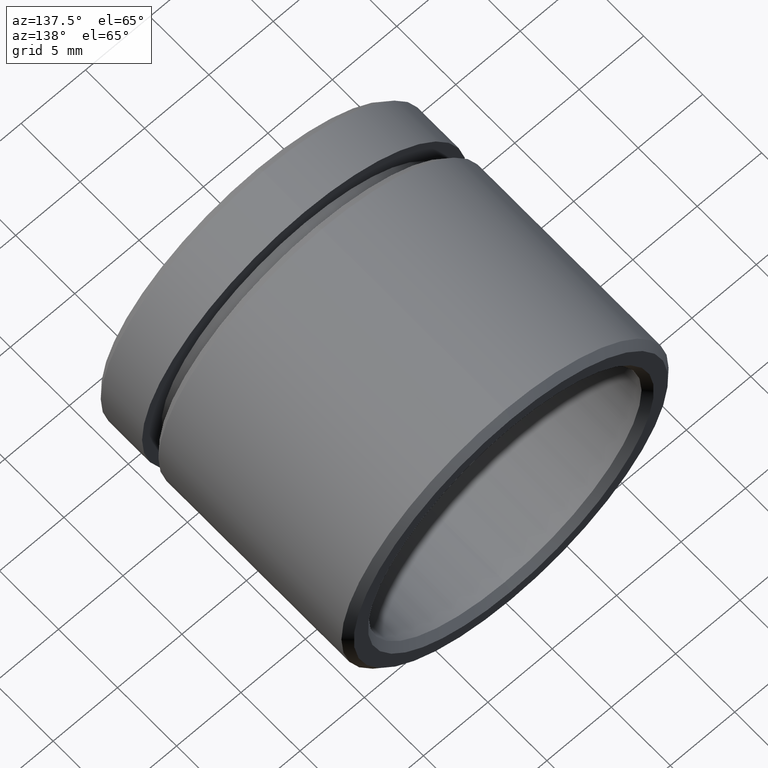
[diagram: clean part render]
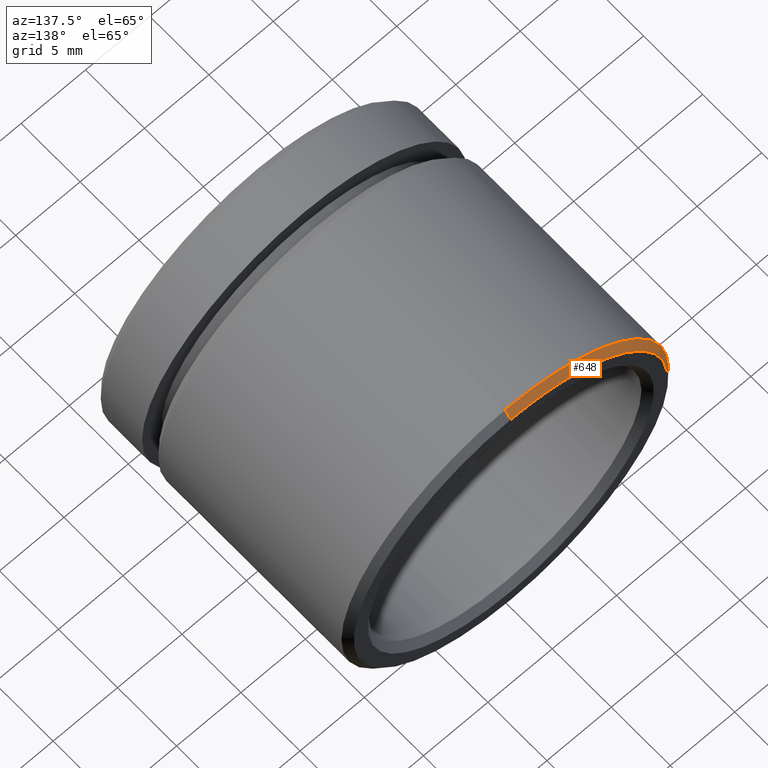
[diagram: same view with one face highlighted and labeled with its STEP entity id]
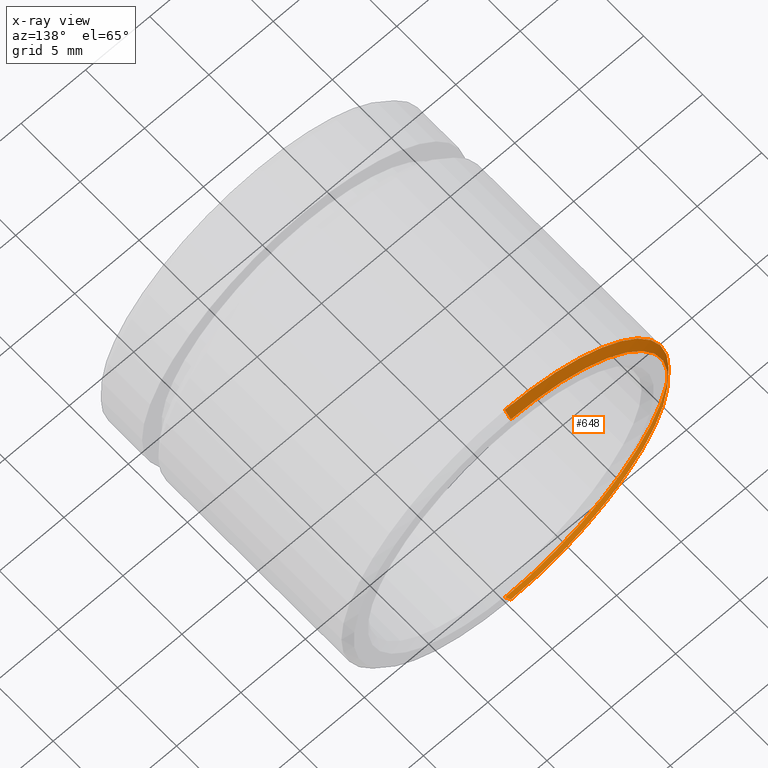
[diagram: x-ray of the same camera — body ghosted, the highlighted face saturated]
A machine part, auxiliary view. The second image highlights one B-rep face of the part: STEP entity #648.
The next image is the same camera in x-ray: the body ghosted, the highlighted face saturated — about 0% of this face is hidden behind the body in this view.
In plain terms, the highlighted conical surface has half-angle 45 deg.
Its self-contained STEP definition (entity closure, byte-faithful):
#49 = VERTEX_POINT ( 'NONE', #735 ) ;
#81 = CARTESIAN_POINT ( 'NONE',  ( 1.555301434917138400E-015, 20.99999999999998200, 12.69999999999999900 ) ) ;
#100 = VERTEX_POINT ( 'NONE', #81 ) ;
#173 = DIRECTION ( 'NONE',  ( 8.659560562354979700E-017, -0.7071067811865439100, 0.7071067811865512400 ) ) ;
#184 = AXIS2_PLACEMENT_3D ( 'NONE', #330, #343, #815 ) ;
#212 = DIRECTION ( 'NONE',  ( -0.0000000000000000000, -1.000000000000000000, -0.0000000000000000000 ) ) ;
#256 = EDGE_CURVE ( 'NONE', #404, #529, #569, .T. ) ;
#280 = CIRCLE ( 'NONE', #413, 12.69999999999999900 ) ;
#317 = ORIENTED_EDGE ( 'NONE', *, *, #846, .T. ) ;
#325 = DIRECTION ( 'NONE',  ( 0.0000000000000000000, -0.7071067811865439100, -0.7071067811865512400 ) ) ;
#330 = CARTESIAN_POINT ( 'NONE',  ( 0.0000000000000000000, 20.99999999999998200, 0.0000000000000000000 ) ) ;
#343 = DIRECTION ( 'NONE',  ( -0.0000000000000000000, -1.000000000000000000, -0.0000000000000000000 ) ) ;
#346 = LINE ( 'NONE', #433, #503 ) ;
#350 = CARTESIAN_POINT ( 'NONE',  ( 0.0000000000000000000, 20.99999999999998200, -12.69999999999999900 ) ) ;
#358 = CONICAL_SURFACE ( 'NONE', #184, 12.69999999999999900, 0.7853981633974536100 ) ;
#390 = CARTESIAN_POINT ( 'NONE',  ( 0.0000000000000000000, 21.50000000000000000, -12.19999999999998000 ) ) ;
#394 = ORIENTED_EDGE ( 'NONE', *, *, #832, .F. ) ;
#404 = VERTEX_POINT ( 'NONE', #390 ) ;
#407 = DIRECTION ( 'NONE',  ( 0.0000000000000000000, 1.000000000000000000, 0.0000000000000000000 ) ) ;
#413 = AXIS2_PLACEMENT_3D ( 'NONE', #698, #212, #862 ) ;
#424 = CARTESIAN_POINT ( 'NONE',  ( 1.524685264938453700E-015, 21.50000000000000000, 12.19999999999998000 ) ) ;
#429 = ORIENTED_EDGE ( 'NONE', *, *, #819, .F. ) ;
#433 = CARTESIAN_POINT ( 'NONE',  ( 1.555301434917138400E-015, 20.99999999999998200, 12.69999999999999900 ) ) ;
#457 = EDGE_LOOP ( 'NONE', ( #429, #500, #317, #394 ) ) ;
#465 = CARTESIAN_POINT ( 'NONE',  ( 0.0000000000000000000, 21.50000000000000000, 0.0000000000000000000 ) ) ;
#500 = ORIENTED_EDGE ( 'NONE', *, *, #256, .F. ) ;
#503 = VECTOR ( 'NONE', #173, 999.9999999999998900 ) ;
#529 = VERTEX_POINT ( 'NONE', #424 ) ;
#547 = FACE_OUTER_BOUND ( 'NONE', #457, .T. ) ;
#569 = CIRCLE ( 'NONE', #871, 12.19999999999998000 ) ;
#648 = ADVANCED_FACE ( 'NONE', ( #547 ), #358, .T. ) ;
#678 = DIRECTION ( 'NONE',  ( 0.0000000000000000000, 0.0000000000000000000, 1.000000000000000000 ) ) ;
#698 = CARTESIAN_POINT ( 'NONE',  ( 0.0000000000000000000, 20.99999999999998200, 0.0000000000000000000 ) ) ;
#728 = LINE ( 'NONE', #350, #836 ) ;
#735 = CARTESIAN_POINT ( 'NONE',  ( 0.0000000000000000000, 20.99999999999998200, -12.69999999999999900 ) ) ;
#815 = DIRECTION ( 'NONE',  ( 0.0000000000000000000, 0.0000000000000000000, -1.000000000000000000 ) ) ;
#819 = EDGE_CURVE ( 'NONE', #529, #100, #346, .T. ) ;
#832 = EDGE_CURVE ( 'NONE', #100, #49, #280, .T. ) ;
#836 = VECTOR ( 'NONE', #325, 999.9999999999998900 ) ;
#846 = EDGE_CURVE ( 'NONE', #404, #49, #728, .T. ) ;
#862 = DIRECTION ( 'NONE',  ( 0.0000000000000000000, 0.0000000000000000000, 1.000000000000000000 ) ) ;
#871 = AXIS2_PLACEMENT_3D ( 'NONE', #465, #407, #678 ) ;